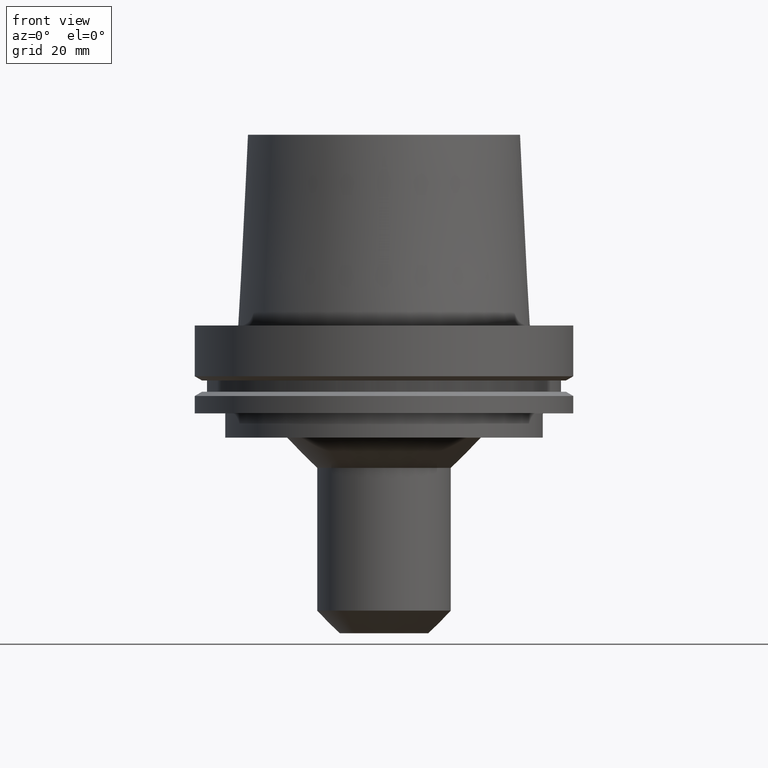
[diagram: clean part render]
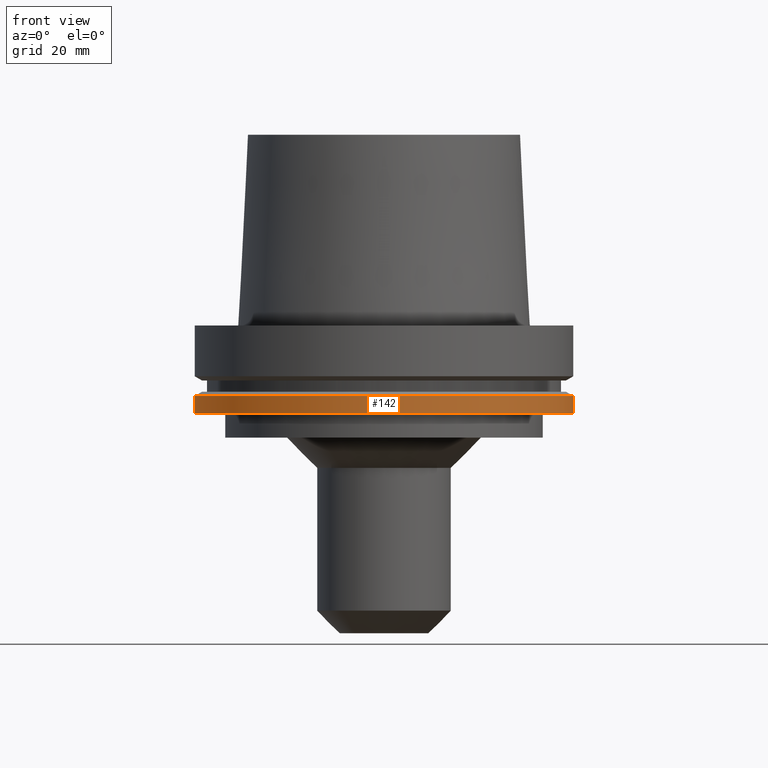
[diagram: same view with one face highlighted and labeled with its STEP entity id]
A machine part, front view. The second image highlights one B-rep face of the part: STEP entity #142.
In plain terms, the highlighted cylindrical surface (bore or boss wall) has radius 62.5 mm, axis along (0, 0, -1).
Its self-contained STEP definition (entity closure, byte-faithful):
#89=EDGE_CURVE('Unnamed[1]',#206,#206,#207,.T.);
#97=EDGE_CURVE('Unnamed[1]',#219,#219,#220,.T.);
#142=ADVANCED_FACE('Unnamed[1]',(#290,#291),#292,.T.);
#206=VERTEX_POINT('',#358);
#207=CIRCLE('',#359,62.5);
#219=VERTEX_POINT('',#374);
#220=CIRCLE('',#375,62.5);
#290=FACE_BOUND('',#463,.T.);
#291=FACE_BOUND('',#464,.T.);
#292=CYLINDRICAL_SURFACE('',#465,62.5);
#358=CARTESIAN_POINT('',(1.42350465640827E-015,62.5,-23.2475952641916));
#359=AXIS2_PLACEMENT_3D('',#517,#518,#519);
#374=CARTESIAN_POINT('',(1.77573785876367E-015,62.5,-29.0000000000001));
#375=AXIS2_PLACEMENT_3D('',#532,#533,#534);
#463=EDGE_LOOP('',(#611));
#464=EDGE_LOOP('',(#612));
#465=AXIS2_PLACEMENT_3D('',#613,#614,#615);
#517=CARTESIAN_POINT('',(1.42350465640827E-015,2.84700931281654E-015,-23.2475952641916));
#518=DIRECTION('',(6.12323399573677E-017,1.22464679914723E-016,-1.0));
#519=DIRECTION('',(-1.23259516440783E-032,1.0,1.22464679914723E-016));
#532=CARTESIAN_POINT('',(1.77573785876367E-015,3.55147571752733E-015,-29.0000000000001));
#533=DIRECTION('',(6.12323399573677E-017,1.22464679914723E-016,-1.0));
#534=DIRECTION('',(-1.23259516440783E-032,1.0,1.22464679914723E-016));
#611=ORIENTED_EDGE('',*,*,#97,.F.);
#612=ORIENTED_EDGE('',*,*,#89,.T.);
#613=CARTESIAN_POINT('',(1.59962125758597E-015,3.19924251517194E-015,-26.1237976320958));
#614=DIRECTION('',(6.12323399573677E-017,1.22464679914723E-016,-1.0));
#615=DIRECTION('',(-1.23259516440783E-032,1.0,1.22464679914723E-016));